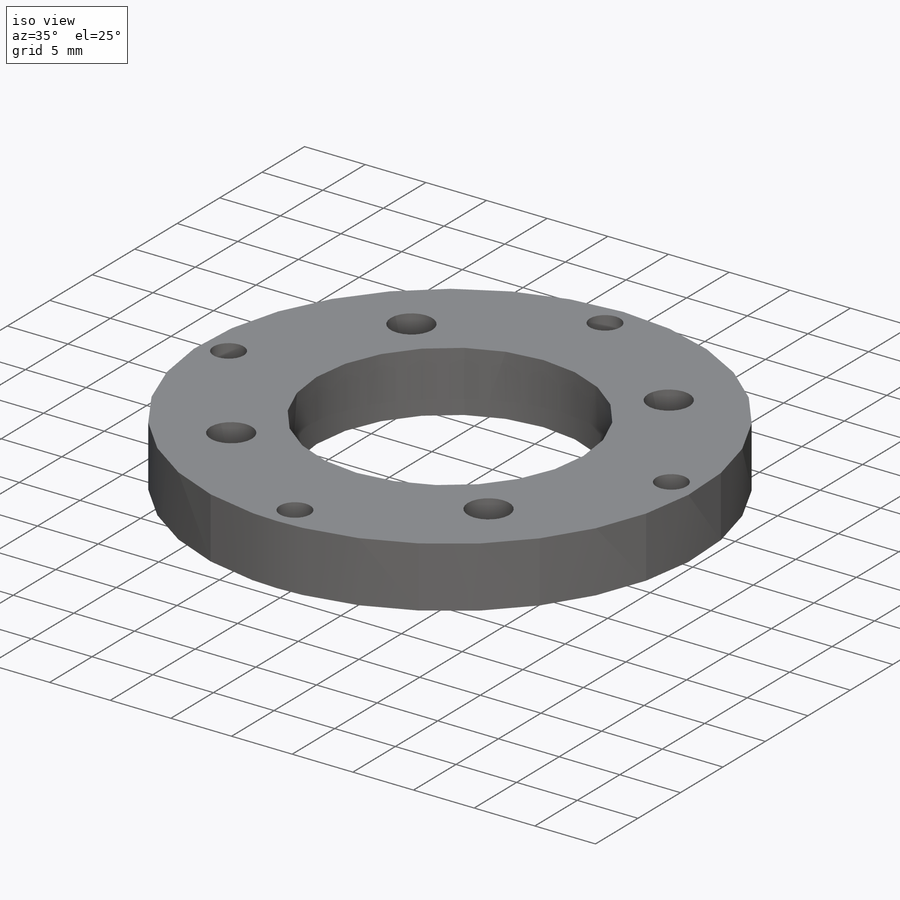
[diagram: iso view]
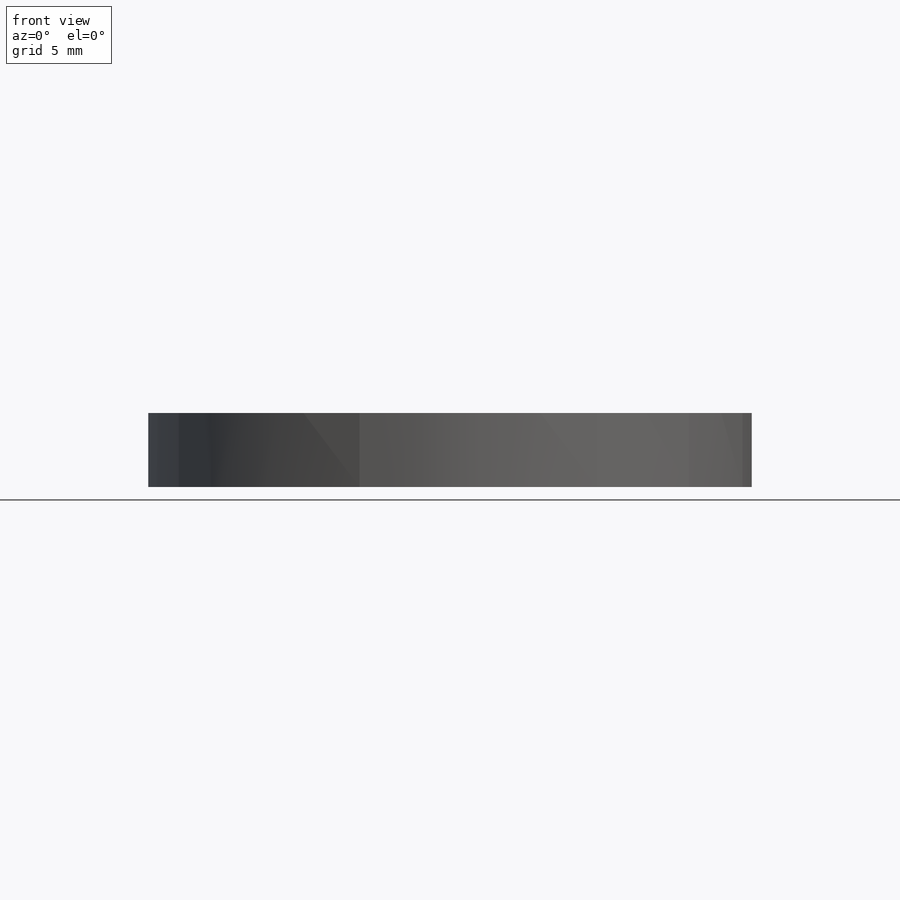
[diagram: front view]
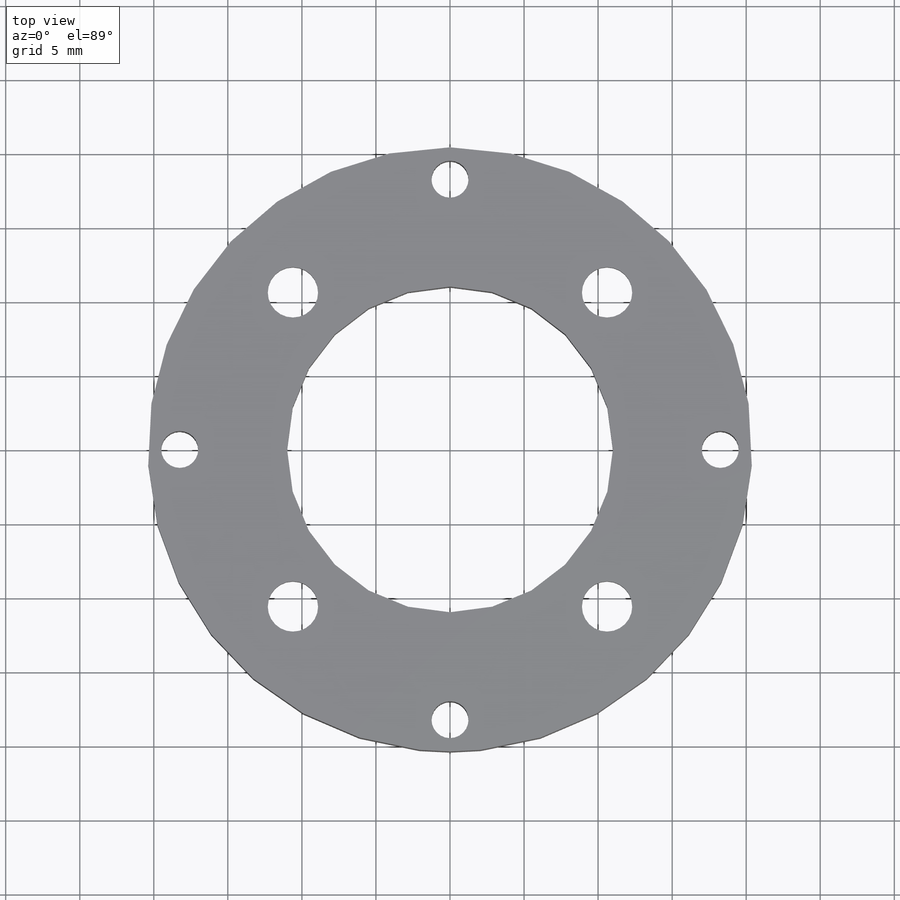
[diagram: top view]
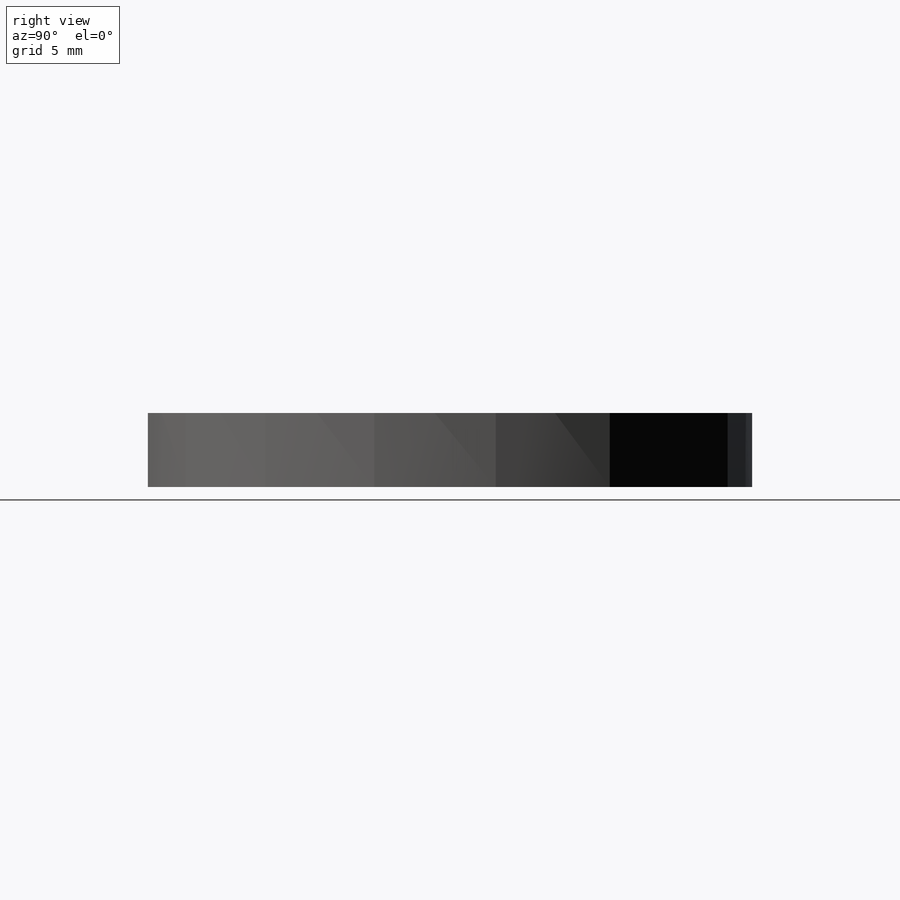
[diagram: right view]
SOLIDWORKS PART (.sldprt)
format: sldprt  version: not decoded by parser v0  size: 275,968 bytes
history: native  units: mm
features: thread x4, hole x2, material x1, sketch x1, extrude x1 + 6 further entries (+11 scaffold rows collapsed)
feature tree (26):
  scaffold x11  (default folders/planes/origin — collapsed)
  material  "3.1355 (EN-AW 2024)"
  sketch  "Эскиз1"  dims[D1=40.8mm D2=22.0mm]
  extrude  "Бобышка-Вытянуть1"  Depth=5mm
  "Эскиз2"
  hole  "Отверстие обработанное метчиком M3x0.51"  [1 undecoded]
  "Эскиз5"
  "Эскиз4"  4=25.4mm Диаметр проходного сверла=2.5mm Глубина проходного сверла=5mm
  thread  "Отверстие резьбы1"  Diameter=3mm  [1 undecoded]
  thread  "Отверстие резьбы2"  Diameter=3mm  [1 undecoded]
  thread  "Отверстие резьбы3"  Diameter=3mm  [1 undecoded]
  thread  "Отверстие резьбы4"  Diameter=3mm  [1 undecoded]
  "Эскиз6"
  hole  "Цековка для винта с внутренним шестигранником M31"  [1 undecoded]
  "Эскиз8"
  "Эскиз7"  4=25.4mm Диаметр сквозного отверстия=3.4mm Глубина сквозного отверстия=5mm Диаметр цековки=6.5mm Глубина цековки=3mm
decode coverage: 6 of 8 modeling features carry decoded parameters; 6 rows unclassified (native names shown)
note: 6 parameter values undecoded
note: suppression state not decoded; provenance and decode notes live in map.json
